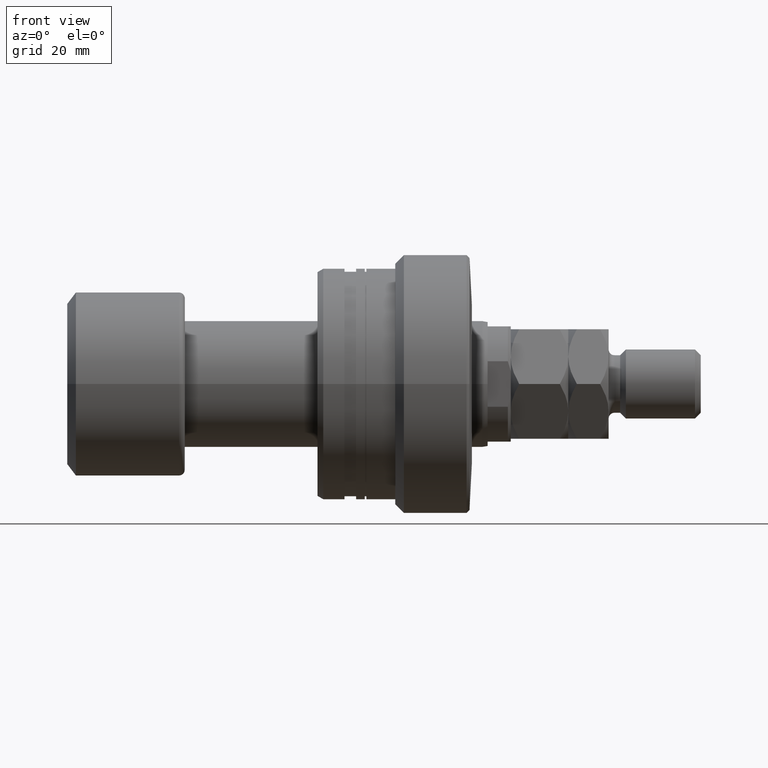
[diagram: clean part render]
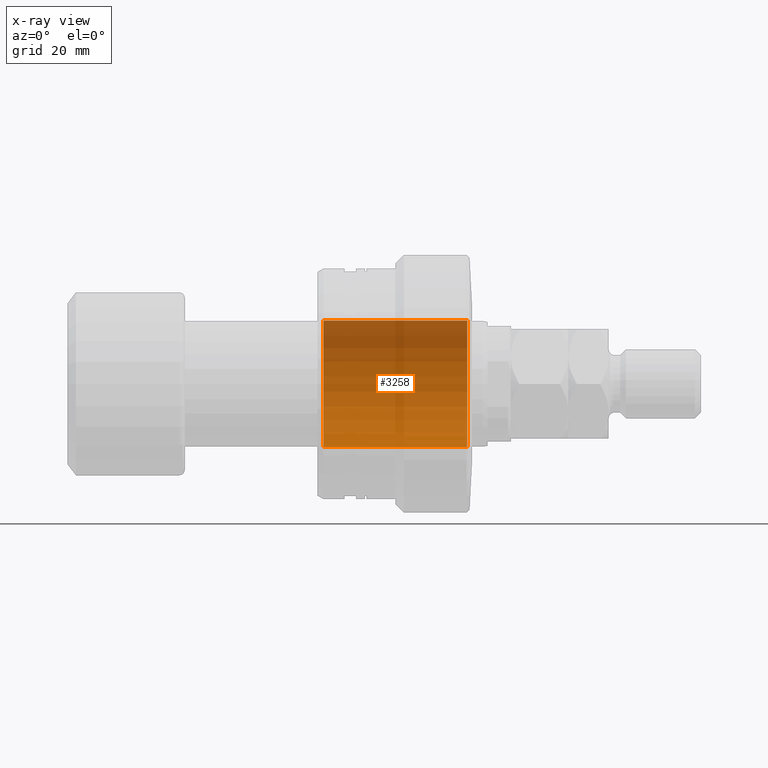
[diagram: x-ray — body ghosted, one internal face saturated and labeled with its STEP entity id]
A machine part, front view, then the same camera in x-ray: the body is ghosted and one INTERNAL B-rep face — a face not visible from any outside direction — is saturated and labeled: STEP entity #3258.
In plain terms, the highlighted cylindrical surface (partial cylindrical patch) has radius 11 mm, axis along (1, 0, 0).
Its self-contained STEP definition (entity closure, byte-faithful):
#4 = CARTESIAN_POINT ( 'NONE',  ( -1.500000000000000000, 0.000000000000000000, 0.000000000000000000 ) ) ;
#104 = CARTESIAN_POINT ( 'NONE',  ( -1.500000000000000000, 0.000000000000000000, -11.00000000000000000 ) ) ;
#161 = FACE_OUTER_BOUND ( 'NONE', #678, .T. ) ;
#179 = CARTESIAN_POINT ( 'NONE',  ( -58.61269837220807233, 0.000000000000000000, 0.000000000000000000 ) ) ;
#185 = CARTESIAN_POINT ( 'NONE',  ( -58.61269837220807233, 0.000000000000000000, -11.00000000000000000 ) ) ;
#295 = DIRECTION ( 'NONE',  ( 1.000000000000000000, 0.000000000000000000, 0.000000000000000000 ) ) ;
#402 = CARTESIAN_POINT ( 'NONE',  ( -26.49999999999999645, 0.000000000000000000, -11.00000000000000000 ) ) ;
#454 = AXIS2_PLACEMENT_3D ( 'NONE', #4, #295, #2170 ) ;
#533 = EDGE_CURVE ( 'NONE', #1220, #3908, #2150, .T. ) ;
#678 = EDGE_LOOP ( 'NONE', ( #849, #1779, #1074, #1736 ) ) ;
#761 = DIRECTION ( 'NONE',  ( 0.000000000000000000, 0.000000000000000000, 1.000000000000000000 ) ) ;
#849 = ORIENTED_EDGE ( 'NONE', *, *, #3309, .F. ) ;
#966 = VERTEX_POINT ( 'NONE', #3075 ) ;
#1074 = ORIENTED_EDGE ( 'NONE', *, *, #2144, .T. ) ;
#1159 = DIRECTION ( 'NONE',  ( 1.000000000000000000, -0.000000000000000000, -0.000000000000000000 ) ) ;
#1220 = VERTEX_POINT ( 'NONE', #104 ) ;
#1591 = VERTEX_POINT ( 'NONE', #402 ) ;
#1736 = ORIENTED_EDGE ( 'NONE', *, *, #533, .T. ) ;
#1779 = ORIENTED_EDGE ( 'NONE', *, *, #2909, .T. ) ;
#1908 = CIRCLE ( 'NONE', #2819, 11.00000000000000000 ) ;
#2045 = CARTESIAN_POINT ( 'NONE',  ( -1.500000000000000000, 1.347111479062088405E-15, 11.00000000000000000 ) ) ;
#2070 = DIRECTION ( 'NONE',  ( -1.000000000000000000, -0.000000000000000000, -0.000000000000000000 ) ) ;
#2144 = EDGE_CURVE ( 'NONE', #1591, #1220, #3276, .T. ) ;
#2150 = CIRCLE ( 'NONE', #454, 11.00000000000000000 ) ;
#2170 = DIRECTION ( 'NONE',  ( 0.000000000000000000, 0.000000000000000000, -1.000000000000000000 ) ) ;
#2361 = DIRECTION ( 'NONE',  ( 0.000000000000000000, 0.000000000000000000, -1.000000000000000000 ) ) ;
#2366 = DIRECTION ( 'NONE',  ( 1.000000000000000000, -0.000000000000000000, -0.000000000000000000 ) ) ;
#2429 = VECTOR ( 'NONE', #3312, 1000.000000000000000 ) ;
#2604 = VECTOR ( 'NONE', #2366, 1000.000000000000000 ) ;
#2692 = CARTESIAN_POINT ( 'NONE',  ( -58.61269837220807233, 1.347111479062088405E-15, 11.00000000000000000 ) ) ;
#2819 = AXIS2_PLACEMENT_3D ( 'NONE', #2984, #2070, #761 ) ;
#2909 = EDGE_CURVE ( 'NONE', #966, #1591, #1908, .T. ) ;
#2984 = CARTESIAN_POINT ( 'NONE',  ( -26.49999999999999645, 0.000000000000000000, 0.000000000000000000 ) ) ;
#3075 = CARTESIAN_POINT ( 'NONE',  ( -26.49999999999999645, 1.347111479062088405E-15, 11.00000000000000000 ) ) ;
#3258 = ADVANCED_FACE ( 'NONE', ( #161 ), #3872, .F. ) ;
#3276 = LINE ( 'NONE', #185, #2604 ) ;
#3309 = EDGE_CURVE ( 'NONE', #966, #3908, #3615, .T. ) ;
#3312 = DIRECTION ( 'NONE',  ( 1.000000000000000000, -0.000000000000000000, -0.000000000000000000 ) ) ;
#3615 = LINE ( 'NONE', #2692, #2429 ) ;
#3661 = AXIS2_PLACEMENT_3D ( 'NONE', #179, #1159, #2361 ) ;
#3872 = CYLINDRICAL_SURFACE ( 'NONE', #3661, 11.00000000000000000 ) ;
#3908 = VERTEX_POINT ( 'NONE', #2045 ) ;